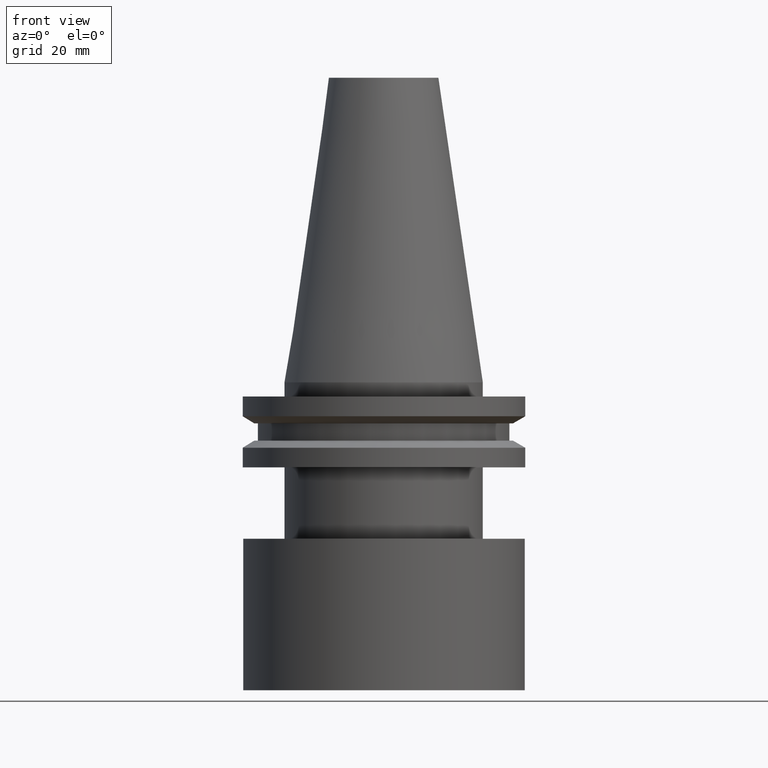
[diagram: clean part render]
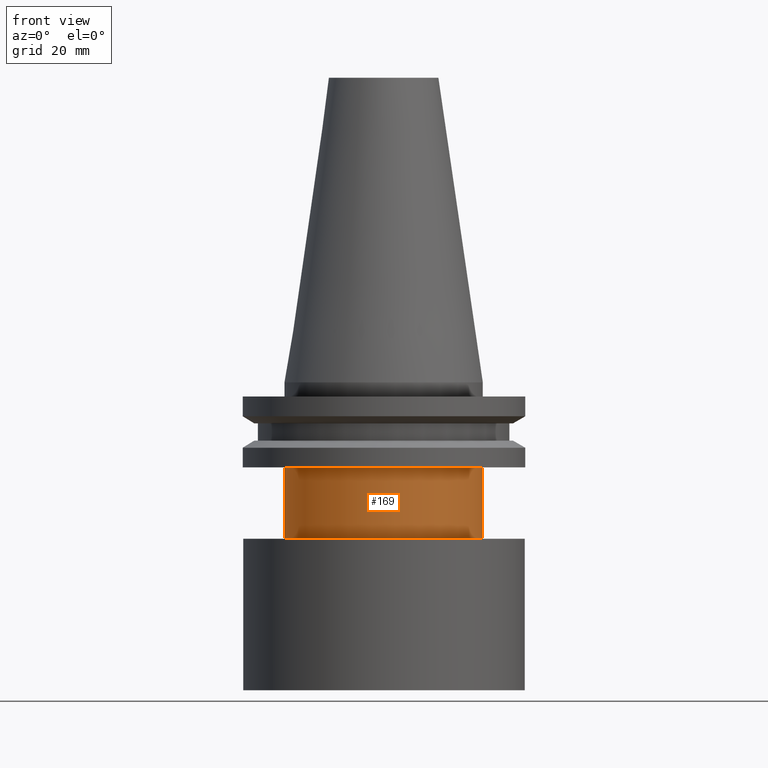
[diagram: same view with one face highlighted and labeled with its STEP entity id]
A machine part, front view. The second image highlights one B-rep face of the part: STEP entity #169.
In plain terms, the highlighted cylindrical surface (bore or boss wall) has radius 22.225 mm, axis along (-0, -0, 1).
Its self-contained STEP definition (entity closure, byte-faithful):
#19 = DIRECTION ( 'NONE',  ( -0.000000000000000000, -0.000000000000000000, 1.000000000000000000 ) ) ;
#22 = AXIS2_PLACEMENT_3D ( 'NONE', #331, #19, #86 ) ;
#51 = DIRECTION ( 'NONE',  ( 1.000000000000000000, 0.000000000000000000, 0.000000000000000000 ) ) ;
#55 = CARTESIAN_POINT ( 'NONE',  ( 0.000000000000000000, 0.000000000000000000, -19.04999999999999716 ) ) ;
#86 = DIRECTION ( 'NONE',  ( 1.000000000000000000, 0.000000000000000000, 0.000000000000000000 ) ) ;
#89 = AXIS2_PLACEMENT_3D ( 'NONE', #55, #245, #158 ) ;
#108 = CARTESIAN_POINT ( 'NONE',  ( 22.22500000000000142, 0.000000000000000000, -19.04999999999999716 ) ) ;
#130 = CIRCLE ( 'NONE', #89, 22.22500000000000142 ) ;
#137 = EDGE_CURVE ( 'NONE', #348, #348, #225, .T. ) ;
#158 = DIRECTION ( 'NONE',  ( 1.000000000000000000, 0.000000000000000000, 0.000000000000000000 ) ) ;
#162 = EDGE_LOOP ( 'NONE', ( #383 ) ) ;
#169 = ADVANCED_FACE ( 'NONE', ( #261, #174 ), #298, .T. ) ;
#174 = FACE_OUTER_BOUND ( 'NONE', #162, .T. ) ;
#198 = AXIS2_PLACEMENT_3D ( 'NONE', #265, #327, #51 ) ;
#225 = CIRCLE ( 'NONE', #198, 22.22500000000000142 ) ;
#245 = DIRECTION ( 'NONE',  ( -0.000000000000000000, -0.000000000000000000, 1.000000000000000000 ) ) ;
#260 = CARTESIAN_POINT ( 'NONE',  ( 22.22500000000000142, 0.000000000000000000, -35.04999999999999716 ) ) ;
#261 = FACE_OUTER_BOUND ( 'NONE', #285, .T. ) ;
#265 = CARTESIAN_POINT ( 'NONE',  ( 0.000000000000000000, 0.000000000000000000, -35.04999999999999716 ) ) ;
#285 = EDGE_LOOP ( 'NONE', ( #349 ) ) ;
#298 = CYLINDRICAL_SURFACE ( 'NONE', #22, 22.22500000000000142 ) ;
#327 = DIRECTION ( 'NONE',  ( -0.000000000000000000, -0.000000000000000000, 1.000000000000000000 ) ) ;
#331 = CARTESIAN_POINT ( 'NONE',  ( 0.000000000000000000, 0.000000000000000000, 68.25000000000000000 ) ) ;
#348 = VERTEX_POINT ( 'NONE', #260 ) ;
#349 = ORIENTED_EDGE ( 'NONE', *, *, #359, .F. ) ;
#359 = EDGE_CURVE ( 'NONE', #384, #384, #130, .T. ) ;
#383 = ORIENTED_EDGE ( 'NONE', *, *, #137, .T. ) ;
#384 = VERTEX_POINT ( 'NONE', #108 ) ;